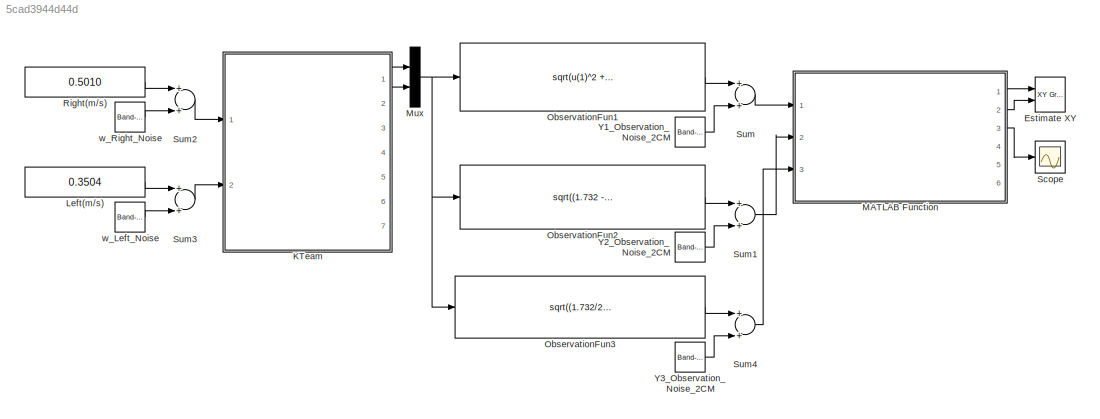
MODEL slx_5cad3944d44d
KIND model
BLOCK [Reference] Estimate XY  REF=simulink/Sinks/XY Graph
  Ports = [2]
  SourceBlock = simulink/Sinks/XY Graph
  SourceType = XY scope.
  st = -1
  xmax = 1.732
  xmin = -0.5
  ymax = 1.5
  ymin = -0.5
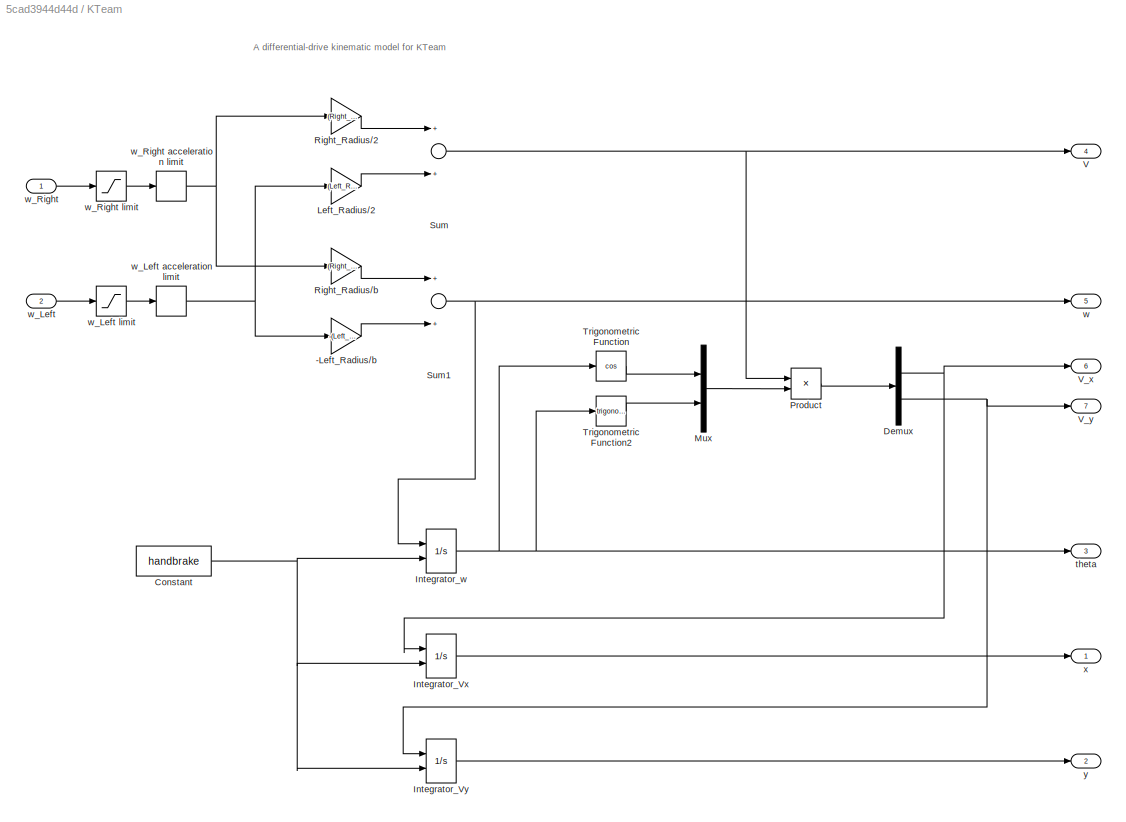
BLOCK [SubSystem] KTeam
  Ports = [2, 7]
  RequestExecContextInheritance = off
BLOCK [Gain] KTeam/-Left_Radius//b
  Gain = -(Left_Radius/1000)/(b/1000)
  OutDataTypeStr = Inherit: Inherit via internal rule
  ParamDataTypeStr = Inherit: Inherit via internal rule
  SaturateOnIntegerOverflow = off
BLOCK [Constant] KTeam/Constant
  Value = handbrake
BLOCK [Demux] KTeam/Demux
  DisplayOption = bar
  Outputs = 2
  Ports = [1, 2]
BLOCK [Integrator] KTeam/Integrator_Vx
  ExternalReset = level
  InitialCondition = x1
  Ports = [2, 1]
BLOCK [Integrator] KTeam/Integrator_Vy
  ExternalReset = level
  InitialCondition = x2
  Ports = [2, 1]
BLOCK [Integrator] KTeam/Integrator_w
  ExternalReset = level
  InitialCondition = x0
  Ports = [2, 1]
BLOCK [Gain] KTeam/Left_Radius//2
  Gain = (Left_Radius/1000)/2
  OutDataTypeStr = Inherit: Inherit via internal rule
  ParamDataTypeStr = Inherit: Inherit via internal rule
  SaturateOnIntegerOverflow = off
BLOCK [Mux] KTeam/Mux
  DisplayOption = bar
  Inputs = 2
  Ports = [2, 1]
BLOCK [Product] KTeam/Product
  InputSameDT = off
  OutDataTypeStr = Inherit: Inherit via internal rule
  Ports = [2, 1]
  SaturateOnIntegerOverflow = off
BLOCK [Gain] KTeam/Right_Radius//2
  Gain = (Right_Radius/1000)/2
  OutDataTypeStr = Inherit: Inherit via internal rule
  ParamDataTypeStr = Inherit: Inherit via internal rule
  SaturateOnIntegerOverflow = off
BLOCK [Gain] KTeam/Right_Radius//b
  Gain = (Right_Radius/1000)/(b/1000)
  OutDataTypeStr = Inherit: Inherit via internal rule
  ParamDataTypeStr = Inherit: Inherit via internal rule
  SaturateOnIntegerOverflow = off
BLOCK [Sum] KTeam/Sum
  InputSameDT = off
  OutDataTypeStr = Inherit: Inherit via internal rule
  Ports = [2, 1]
  SaturateOnIntegerOverflow = off
BLOCK [Sum] KTeam/Sum1
  InputSameDT = off
  OutDataTypeStr = Inherit: Inherit via internal rule
  Ports = [2, 1]
  SaturateOnIntegerOverflow = off
BLOCK [Trigonometry] KTeam/Trigonometric Function
  Operator = cos
  Ports = [1, 1]
BLOCK [Trigonometry] KTeam/Trigonometric Function2
  Ports = [1, 1]
BLOCK [Outport] KTeam/V
  IconDisplay = Port number
  Port = 4
BLOCK [Outport] KTeam/V_x
  IconDisplay = Port number
  Port = 6
BLOCK [Outport] KTeam/V_y
  IconDisplay = Port number
  Port = 7
BLOCK [Outport] KTeam/theta
  IconDisplay = Port number
  Port = 3
BLOCK [Outport] KTeam/w
  IconDisplay = Port number
  Port = 5
BLOCK [Inport] KTeam/w_Left
  IconDisplay = Port number
  Port = 2
BLOCK [RateLimiter] KTeam/w_Left acceleration limit
  FallingSlewLimit = -w_Left_ACCLimit
  RisingSlewLimit = w_Left_ACCLimit
  SampleTimeMode = inherited
BLOCK [Saturate] KTeam/w_Left limit
  InputPortMap = u0
  LowerLimit = -wLeftLimit
  Ports = [1, 1]
  SampleTime = KTeamSampleTime
  UpperLimit = wLeftLimit
BLOCK [Inport] KTeam/w_Right
  IconDisplay = Port number
BLOCK [RateLimiter] KTeam/w_Right acceleration limit
  FallingSlewLimit = -w_Right_ACCLimit
  RisingSlewLimit = w_Right_ACCLimit
  SampleTimeMode = inherited
BLOCK [Saturate] KTeam/w_Right limit
  InputPortMap = u0
  LowerLimit = -wRightLimit
  Ports = [1, 1]
  SampleTime = KTeamSampleTime
  UpperLimit = wRightLimit
BLOCK [Outport] KTeam/x
  IconDisplay = Port number
BLOCK [Outport] KTeam/y
  IconDisplay = Port number
  Port = 2
BLOCK [Constant] Left(m//s)
  Value = 0.3504
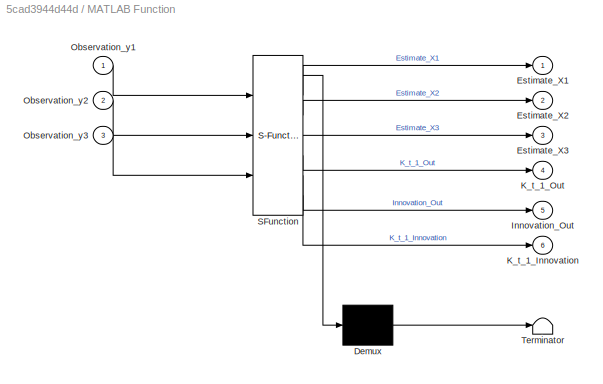
BLOCK [SubSystem] MATLAB Function
  ErrorFcn = Stateflow.Translate.translate
  PermitHierarchicalResolution = ExplicitOnly
  Ports = [3, 6]
  RequestExecContextInheritance = off
  SFBlockType = MATLAB Function
  TreatAsAtomicUnit = on
BLOCK [Demux] MATLAB Function/ Demux 
  Outputs = 1
  Ports = [1, 1]
BLOCK [S-Function] MATLAB Function/ SFunction 
  EnableBusSupport = off
  FunctionName = sf_sfun
  PortCounts = [3 7]
  Ports = [3, 7]
  Tag = Stateflow S-Function EKF_KTeam 2
BLOCK [Terminator] MATLAB Function/ Terminator 
BLOCK [Outport] MATLAB Function/Estimate_X1
  IconDisplay = Port number
BLOCK [Outport] MATLAB Function/Estimate_X2
  IconDisplay = Port number
  Port = 2
BLOCK [Outport] MATLAB Function/Estimate_X3
  IconDisplay = Port number
  Port = 3
BLOCK [Outport] MATLAB Function/Innovation_Out
  IconDisplay = Port number
  Port = 5
BLOCK [Outport] MATLAB Function/K_t_1_Innovation
  IconDisplay = Port number
  Port = 6
BLOCK [Outport] MATLAB Function/K_t_1_Out
  IconDisplay = Port number
  Port = 4
BLOCK [Inport] MATLAB Function/Observation_y1
  IconDisplay = Port number
BLOCK [Inport] MATLAB Function/Observation_y2
  IconDisplay = Port number
  Port = 2
BLOCK [Inport] MATLAB Function/Observation_y3
  IconDisplay = Port number
  Port = 3
BLOCK [Mux] Mux
  DisplayOption = bar
  Inputs = 2
  Ports = [2, 1]
BLOCK [Fcn] ObservationFun1
  Expr = sqrt(u(1)^2 + u(2)^2)
BLOCK [Fcn] ObservationFun2
  Expr = sqrt((1.732 - u(1))^2 + u(2)^2)
BLOCK [Fcn] ObservationFun3
  Expr = sqrt((1.732/2 - u(1))^2+((1.732/2)*tan(pi/3) - u(2))^2)
BLOCK [Constant] Right(m//s)
  Value = 0.5010
BLOCK [Scope] Scope
  DataFormat = StructureWithTime
  Floating = off
  NumInputPorts = 1
  Ports = [1]
  SampleTime = 0
  ShowLegends = off
BLOCK [Sum] Sum
  InputSameDT = off
  OutDataTypeStr = Inherit: Inherit via internal rule
  Ports = [2, 1]
  SampleTime = 0.4
  SaturateOnIntegerOverflow = off
BLOCK [Sum] Sum1
  InputSameDT = off
  OutDataTypeStr = Inherit: Inherit via internal rule
  Ports = [2, 1]
  SampleTime = 0.4
  SaturateOnIntegerOverflow = off
BLOCK [Sum] Sum2
  InputSameDT = off
  OutDataTypeStr = Inherit: Inherit via internal rule
  Ports = [2, 1]
  SaturateOnIntegerOverflow = off
BLOCK [Sum] Sum3
  InputSameDT = off
  OutDataTypeStr = Inherit: Inherit via internal rule
  Ports = [2, 1]
  SaturateOnIntegerOverflow = off
BLOCK [Sum] Sum4
  InputSameDT = off
  OutDataTypeStr = Inherit: Inherit via internal rule
  Ports = [2, 1]
  SampleTime = 0.4
  SaturateOnIntegerOverflow = off
BLOCK [Reference] Y1_Observation_Noise_2CM  REF=simulink/Sources/Band-Limited
White Noise
  Cov = [(0.333e-2)^2*(2*pi/(100*5))]
  Ports = [0, 1]
  SourceBlock = simulink/Sources/Band-Limited\nWhite Noise
  SourceType = Band-Limited White Noise.
  Ts = 2*pi/(100*5)
  VectorParams1D = on
  seed = [17432]
BLOCK [Reference] Y2_Observation_Noise_2CM  REF=simulink/Sources/Band-Limited
White Noise
  Cov = [(0.333e-2)^2*(2*pi/(100*5))]
  Ports = [0, 1]
  SourceBlock = simulink/Sources/Band-Limited\nWhite Noise
  SourceType = Band-Limited White Noise.
  Ts = 2*pi/(100*5)
  VectorParams1D = on
  seed = [30589]
BLOCK [Reference] Y3_Observation_Noise_2CM  REF=simulink/Sources/Band-Limited
White Noise
  Cov = [(0.333e-2)^2*(2*pi/(100*5))]
  Ports = [0, 1]
  SourceBlock = simulink/Sources/Band-Limited\nWhite Noise
  SourceType = Band-Limited White Noise.
  Ts = 2*pi/(100*5)
  VectorParams1D = on
  seed = [30589]
BLOCK [Reference] w_Left_Noise  REF=simulink/Sources/Band-Limited
White Noise
  Cov = [(8*pi/4198)^2*(2*pi/(100*5))]
  Ports = [0, 1]
  SourceBlock = simulink/Sources/Band-Limited\nWhite Noise
  SourceType = Band-Limited White Noise.
  Ts = 2*pi/(100*5)
  VectorParams1D = on
  seed = [38420]
BLOCK [Reference] w_Right_Noise  REF=simulink/Sources/Band-Limited
White Noise
  Cov = [(8*pi/4198)^2*(2*pi/(100*5))]
  Ports = [0, 1]
  SourceBlock = simulink/Sources/Band-Limited\nWhite Noise
  SourceType = Band-Limited White Noise.
  Ts = 2*pi/(100*5)
  VectorParams1D = on
  seed = [23767]
ANNOTATION KTeam: A differential-drive kinematic model for KTeam
LINE KTeam/-Left_Radius//b:1 -> KTeam/Sum1:2
NET KTeam/Constant:1 -> KTeam/Integrator_Vx:2, KTeam/Integrator_Vy:2, KTeam/Integrator_w:2
NET KTeam/Demux:1 -> KTeam/Integrator_Vx:1, KTeam/V_x:1
NET KTeam/Demux:2 -> KTeam/Integrator_Vy:1, KTeam/V_y:1
LINE KTeam/Integrator_Vx:1 -> KTeam/x:1
LINE KTeam/Integrator_Vy:1 -> KTeam/y:1
NET KTeam/Integrator_w:1 -> KTeam/Trigonometric Function2:1, KTeam/Trigonometric Function:1, KTeam/theta:1
LINE KTeam/Left_Radius//2:1 -> KTeam/Sum:2
LINE KTeam/Mux:1 -> KTeam/Product:2
LINE KTeam/Product:1 -> KTeam/Demux:1
LINE KTeam/Right_Radius//2:1 -> KTeam/Sum:1
LINE KTeam/Right_Radius//b:1 -> KTeam/Sum1:1
NET KTeam/Sum1:1 -> KTeam/Integrator_w:1, KTeam/w:1
NET KTeam/Sum:1 -> KTeam/Product:1, KTeam/V:1
LINE KTeam/Trigonometric Function2:1 -> KTeam/Mux:2
LINE KTeam/Trigonometric Function:1 -> KTeam/Mux:1
NET KTeam/w_Left acceleration limit:1 -> KTeam/-Left_Radius//b:1, KTeam/Left_Radius//2:1
LINE KTeam/w_Left limit:1 -> KTeam/w_Left acceleration limit:1
LINE KTeam/w_Left:1 -> KTeam/w_Left limit:1
NET KTeam/w_Right acceleration limit:1 -> KTeam/Right_Radius//2:1, KTeam/Right_Radius//b:1
LINE KTeam/w_Right limit:1 -> KTeam/w_Right acceleration limit:1
LINE KTeam/w_Right:1 -> KTeam/w_Right limit:1
LINE KTeam:1 -> Mux:1
LINE KTeam:2 -> Mux:2
LINE Left(m//s):1 -> Sum3:1
LINE MATLAB Function:1 -> Estimate XY:1
LINE MATLAB Function:2 -> Estimate XY:2
LINE MATLAB Function:3 -> Scope:1
NET Mux:1 -> ObservationFun1:1, ObservationFun2:1, ObservationFun3:1
LINE ObservationFun1:1 -> Sum:1
LINE ObservationFun2:1 -> Sum1:1
LINE ObservationFun3:1 -> Sum4:1
LINE Right(m//s):1 -> Sum2:1
LINE Sum1:1 -> MATLAB Function:2
LINE Sum2:1 -> KTeam:1
LINE Sum3:1 -> KTeam:2
LINE Sum4:1 -> MATLAB Function:3
LINE Sum:1 -> MATLAB Function:1
LINE Y1_Observation_Noise_2CM:1 -> Sum:2
LINE Y2_Observation_Noise_2CM:1 -> Sum1:2
LINE Y3_Observation_Noise_2CM:1 -> Sum4:2
LINE w_Left_Noise:1 -> Sum3:2
LINE w_Right_Noise:1 -> Sum2:2
note: NET lines group one-source signal fan-out (src -> all destinations, sorted); 1:1 wires keep LINE
